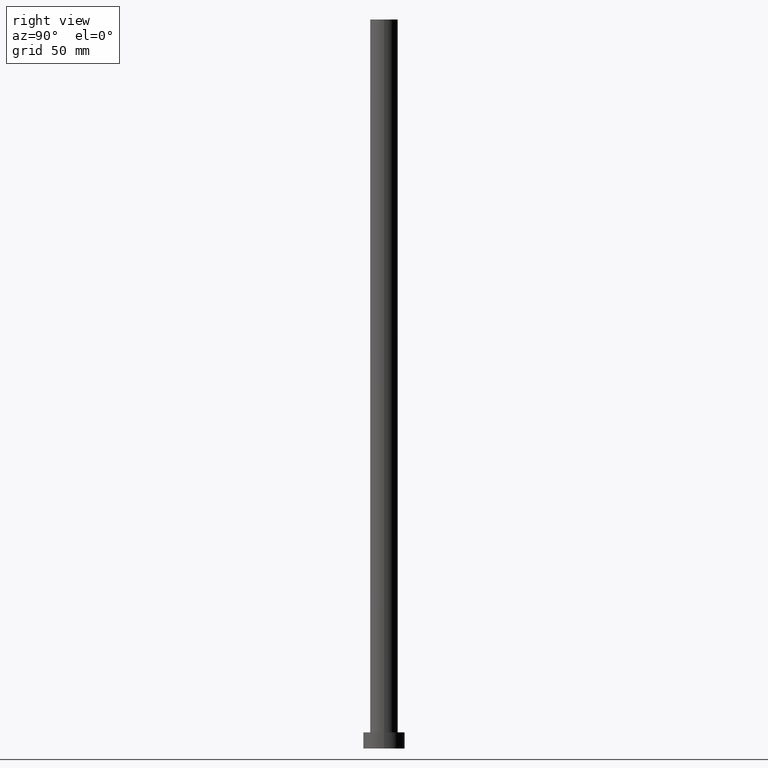
[diagram: clean part render]
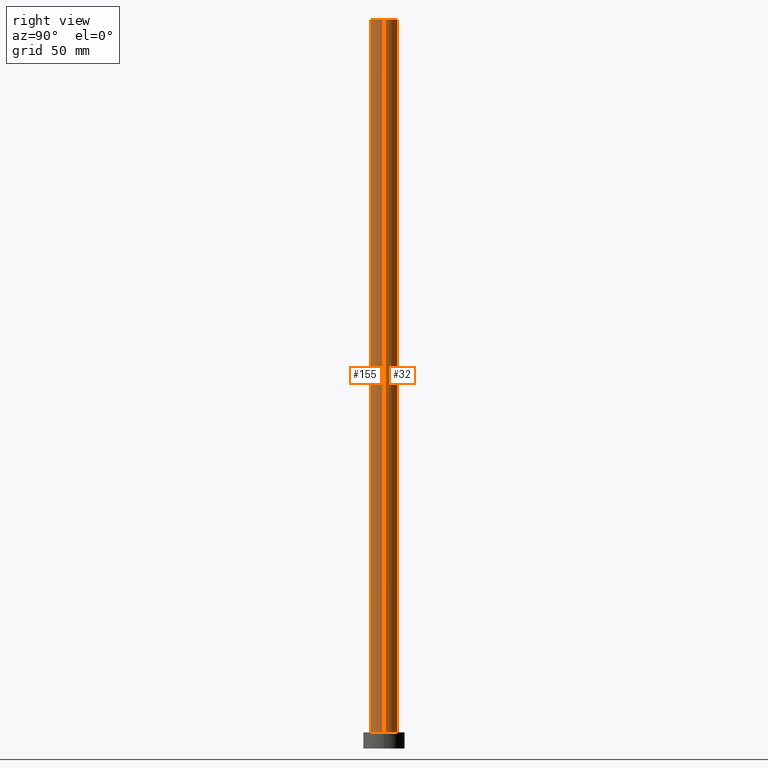
[diagram: same view with one multi-face feature highlighted, each face labeled with its STEP entity id]
A machine part, right view. The highlighted faces form ONE feature: a constant-radius fillet chain: 2 tangent blend faces with common blend radius 6 mm. The faces share edges in the B-rep.
Their STEP definitions:
[1] entity #32 (Cylinder):
#2 = DIRECTION ( 'NONE',  ( 1.000000000000000000, 0.000000000000000000, 0.000000000000000000 ) ) ;
#3 = VERTEX_POINT ( 'NONE', #166 ) ;
#6 = DIRECTION ( 'NONE',  ( 0.000000000000000000, 0.000000000000000000, 1.000000000000000000 ) ) ;
#11 = CARTESIAN_POINT ( 'NONE',  ( 6.000000000000000888, 7.347880794884120722E-16, 315.0000000000000000 ) ) ;
#12 = EDGE_LOOP ( 'NONE', ( #167, #22, #139, #129 ) ) ;
#20 = DIRECTION ( 'NONE',  ( 0.000000000000000000, 0.000000000000000000, 1.000000000000000000 ) ) ;
#22 = ORIENTED_EDGE ( 'NONE', *, *, #217, .T. ) ;
#28 = DIRECTION ( 'NONE',  ( -0.000000000000000000, -0.000000000000000000, -1.000000000000000000 ) ) ;
#32 = ADVANCED_FACE ( 'NONE', ( #210 ), #125, .T. ) ;
#34 = CARTESIAN_POINT ( 'NONE',  ( -6.000000000000000888, 0.000000000000000000, 315.0000000000000000 ) ) ;
#41 = DIRECTION ( 'NONE',  ( -1.000000000000000000, 0.000000000000000000, 0.000000000000000000 ) ) ;
#45 = AXIS2_PLACEMENT_3D ( 'NONE', #69, #20, #110 ) ;
#51 = EDGE_CURVE ( 'NONE', #198, #231, #156, .T. ) ;
#57 = LINE ( 'NONE', #11, #170 ) ;
#59 = DIRECTION ( 'NONE',  ( -0.000000000000000000, -0.000000000000000000, -1.000000000000000000 ) ) ;
#69 = CARTESIAN_POINT ( 'NONE',  ( 0.000000000000000000, 0.000000000000000000, 7.000000000000000000 ) ) ;
#91 = EDGE_CURVE ( 'NONE', #3, #198, #109, .T. ) ;
#97 = EDGE_CURVE ( 'NONE', #114, #231, #142, .T. ) ;
#109 = CIRCLE ( 'NONE', #243, 6.000000000000000888 ) ;
#110 = DIRECTION ( 'NONE',  ( 1.000000000000000000, 0.000000000000000000, 0.000000000000000000 ) ) ;
#114 = VERTEX_POINT ( 'NONE', #163 ) ;
#117 = CARTESIAN_POINT ( 'NONE',  ( -6.000000000000000888, 0.000000000000000000, 7.000000000000000000 ) ) ;
#125 = CYLINDRICAL_SURFACE ( 'NONE', #202, 6.000000000000000888 ) ;
#129 = ORIENTED_EDGE ( 'NONE', *, *, #51, .F. ) ;
#139 = ORIENTED_EDGE ( 'NONE', *, *, #97, .T. ) ;
#141 = CARTESIAN_POINT ( 'NONE',  ( 0.000000000000000000, 0.000000000000000000, 315.0000000000000000 ) ) ;
#142 = CIRCLE ( 'NONE', #45, 6.000000000000000888 ) ;
#156 = LINE ( 'NONE', #34, #180 ) ;
#163 = CARTESIAN_POINT ( 'NONE',  ( 6.000000000000000888, 7.347880794884120722E-16, 7.000000000000000000 ) ) ;
#166 = CARTESIAN_POINT ( 'NONE',  ( 6.000000000000000888, 7.347880794884120722E-16, 315.0000000000000000 ) ) ;
#167 = ORIENTED_EDGE ( 'NONE', *, *, #91, .F. ) ;
#170 = VECTOR ( 'NONE', #28, 1000.000000000000000 ) ;
#180 = VECTOR ( 'NONE', #59, 1000.000000000000000 ) ;
#185 = CARTESIAN_POINT ( 'NONE',  ( -6.000000000000000888, 0.000000000000000000, 315.0000000000000000 ) ) ;
#198 = VERTEX_POINT ( 'NONE', #185 ) ;
#202 = AXIS2_PLACEMENT_3D ( 'NONE', #141, #211, #41 ) ;
#210 = FACE_OUTER_BOUND ( 'NONE', #12, .T. ) ;
#211 = DIRECTION ( 'NONE',  ( -0.000000000000000000, -0.000000000000000000, -1.000000000000000000 ) ) ;
#217 = EDGE_CURVE ( 'NONE', #3, #114, #57, .T. ) ;
#231 = VERTEX_POINT ( 'NONE', #117 ) ;
#237 = CARTESIAN_POINT ( 'NONE',  ( 0.000000000000000000, 0.000000000000000000, 315.0000000000000000 ) ) ;
#243 = AXIS2_PLACEMENT_3D ( 'NONE', #237, #6, #2 ) ;
[2] entity #155 (Cylinder):
#3 = VERTEX_POINT ( 'NONE', #166 ) ;
#4 = CARTESIAN_POINT ( 'NONE',  ( 0.000000000000000000, 0.000000000000000000, 315.0000000000000000 ) ) ;
#11 = CARTESIAN_POINT ( 'NONE',  ( 6.000000000000000888, 7.347880794884120722E-16, 315.0000000000000000 ) ) ;
#19 = ORIENTED_EDGE ( 'NONE', *, *, #52, .F. ) ;
#23 = CYLINDRICAL_SURFACE ( 'NONE', #161, 6.000000000000000888 ) ;
#28 = DIRECTION ( 'NONE',  ( -0.000000000000000000, -0.000000000000000000, -1.000000000000000000 ) ) ;
#34 = CARTESIAN_POINT ( 'NONE',  ( -6.000000000000000888, 0.000000000000000000, 315.0000000000000000 ) ) ;
#39 = CARTESIAN_POINT ( 'NONE',  ( 0.000000000000000000, 0.000000000000000000, 315.0000000000000000 ) ) ;
#46 = FACE_OUTER_BOUND ( 'NONE', #212, .T. ) ;
#47 = ORIENTED_EDGE ( 'NONE', *, *, #51, .T. ) ;
#48 = DIRECTION ( 'NONE',  ( 1.000000000000000000, 0.000000000000000000, 0.000000000000000000 ) ) ;
#51 = EDGE_CURVE ( 'NONE', #198, #231, #156, .T. ) ;
#52 = EDGE_CURVE ( 'NONE', #198, #3, #93, .T. ) ;
#57 = LINE ( 'NONE', #11, #170 ) ;
#59 = DIRECTION ( 'NONE',  ( -0.000000000000000000, -0.000000000000000000, -1.000000000000000000 ) ) ;
#84 = AXIS2_PLACEMENT_3D ( 'NONE', #241, #157, #48 ) ;
#92 = DIRECTION ( 'NONE',  ( -0.000000000000000000, -0.000000000000000000, -1.000000000000000000 ) ) ;
#93 = CIRCLE ( 'NONE', #143, 6.000000000000000888 ) ;
#100 = CIRCLE ( 'NONE', #84, 6.000000000000000888 ) ;
#103 = DIRECTION ( 'NONE',  ( 1.000000000000000000, 0.000000000000000000, 0.000000000000000000 ) ) ;
#114 = VERTEX_POINT ( 'NONE', #163 ) ;
#117 = CARTESIAN_POINT ( 'NONE',  ( -6.000000000000000888, 0.000000000000000000, 7.000000000000000000 ) ) ;
#135 = ORIENTED_EDGE ( 'NONE', *, *, #165, .T. ) ;
#143 = AXIS2_PLACEMENT_3D ( 'NONE', #39, #193, #103 ) ;
#148 = DIRECTION ( 'NONE',  ( -1.000000000000000000, 0.000000000000000000, 0.000000000000000000 ) ) ;
#155 = ADVANCED_FACE ( 'NONE', ( #46 ), #23, .T. ) ;
#156 = LINE ( 'NONE', #34, #180 ) ;
#157 = DIRECTION ( 'NONE',  ( 0.000000000000000000, 0.000000000000000000, 1.000000000000000000 ) ) ;
#161 = AXIS2_PLACEMENT_3D ( 'NONE', #4, #92, #148 ) ;
#163 = CARTESIAN_POINT ( 'NONE',  ( 6.000000000000000888, 7.347880794884120722E-16, 7.000000000000000000 ) ) ;
#165 = EDGE_CURVE ( 'NONE', #231, #114, #100, .T. ) ;
#166 = CARTESIAN_POINT ( 'NONE',  ( 6.000000000000000888, 7.347880794884120722E-16, 315.0000000000000000 ) ) ;
#170 = VECTOR ( 'NONE', #28, 1000.000000000000000 ) ;
#180 = VECTOR ( 'NONE', #59, 1000.000000000000000 ) ;
#185 = CARTESIAN_POINT ( 'NONE',  ( -6.000000000000000888, 0.000000000000000000, 315.0000000000000000 ) ) ;
#193 = DIRECTION ( 'NONE',  ( 0.000000000000000000, 0.000000000000000000, 1.000000000000000000 ) ) ;
#198 = VERTEX_POINT ( 'NONE', #185 ) ;
#201 = ORIENTED_EDGE ( 'NONE', *, *, #217, .F. ) ;
#212 = EDGE_LOOP ( 'NONE', ( #201, #19, #47, #135 ) ) ;
#217 = EDGE_CURVE ( 'NONE', #3, #114, #57, .T. ) ;
#231 = VERTEX_POINT ( 'NONE', #117 ) ;
#241 = CARTESIAN_POINT ( 'NONE',  ( 0.000000000000000000, 0.000000000000000000, 7.000000000000000000 ) ) ;